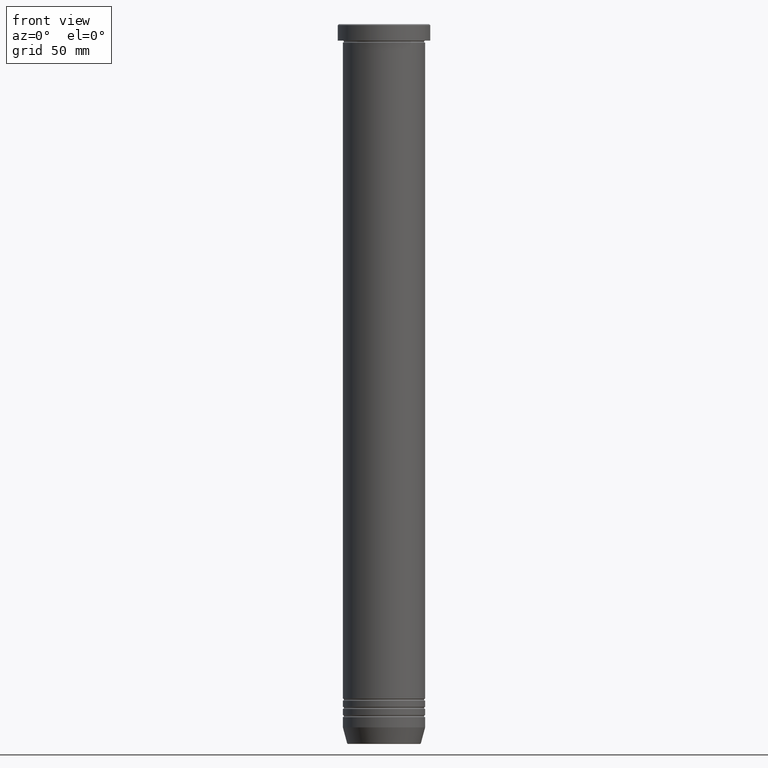
[diagram: clean part render]
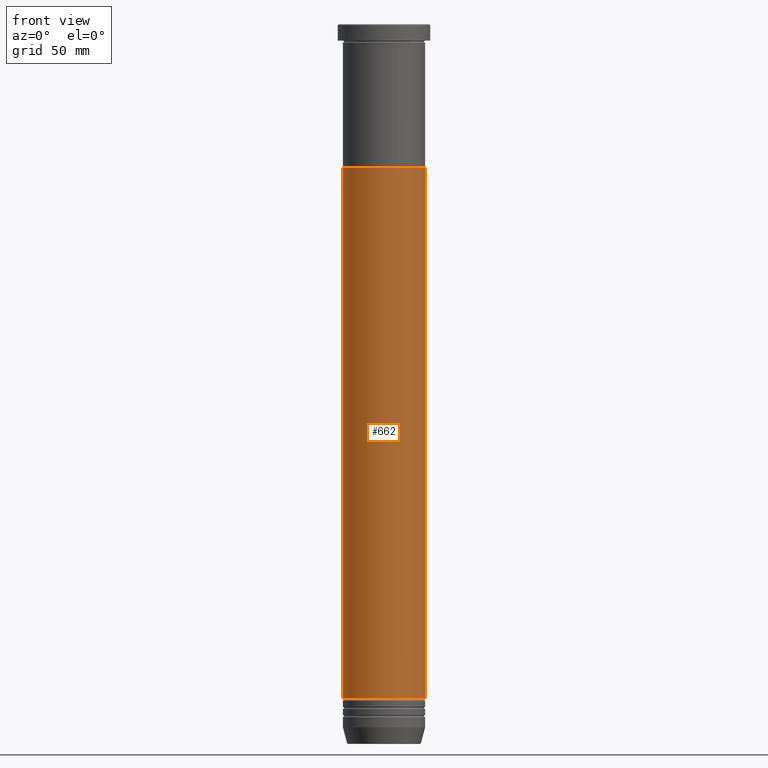
[diagram: same view with one face highlighted and labeled with its STEP entity id]
A machine part, front view. The second image highlights one B-rep face of the part: STEP entity #662.
In plain terms, the highlighted cylindrical surface (partial cylindrical patch) has radius 20 mm, axis along (-0, -0, 1).
Its self-contained STEP definition (entity closure, byte-faithful):
#7 = VERTEX_POINT ( 'NONE', #811 ) ;
#11 = CARTESIAN_POINT ( 'NONE',  ( 0.000000000000000000, 0.000000000000000000, -70.00000000000000000 ) ) ;
#42 = AXIS2_PLACEMENT_3D ( 'NONE', #974, #877, #548 ) ;
#49 = CYLINDRICAL_SURFACE ( 'NONE', #306, 19.99999999999999645 ) ;
#77 = DIRECTION ( 'NONE',  ( 1.000000000000000000, 0.000000000000000000, 0.000000000000000000 ) ) ;
#94 = DIRECTION ( 'NONE',  ( -0.000000000000000000, -0.000000000000000000, 1.000000000000000000 ) ) ;
#151 = EDGE_CURVE ( 'NONE', #678, #7, #1037, .T. ) ;
#213 = EDGE_CURVE ( 'NONE', #770, #7, #684, .T. ) ;
#228 = CARTESIAN_POINT ( 'NONE',  ( 19.99999999999999289, 0.000000000000000000, -328.0000000000000568 ) ) ;
#259 = CARTESIAN_POINT ( 'NONE',  ( -20.00000000000000000, 2.449293598294706513E-15, -70.00000000000000000 ) ) ;
#306 = AXIS2_PLACEMENT_3D ( 'NONE', #318, #383, #619 ) ;
#318 = CARTESIAN_POINT ( 'NONE',  ( 0.000000000000000000, 0.000000000000000000, 0.000000000000000000 ) ) ;
#383 = DIRECTION ( 'NONE',  ( -0.000000000000000000, -0.000000000000000000, 1.000000000000000000 ) ) ;
#385 = DIRECTION ( 'NONE',  ( -0.000000000000000000, -0.000000000000000000, 1.000000000000000000 ) ) ;
#447 = VECTOR ( 'NONE', #94, 1000.000000000000000 ) ;
#460 = ORIENTED_EDGE ( 'NONE', *, *, #558, .T. ) ;
#479 = DIRECTION ( 'NONE',  ( -0.000000000000000000, -0.000000000000000000, 1.000000000000000000 ) ) ;
#491 = EDGE_LOOP ( 'NONE', ( #1060, #460, #875, #1002 ) ) ;
#522 = EDGE_CURVE ( 'NONE', #931, #770, #806, .T. ) ;
#548 = DIRECTION ( 'NONE',  ( 1.000000000000000000, 0.000000000000000000, 0.000000000000000000 ) ) ;
#554 = CARTESIAN_POINT ( 'NONE',  ( -19.99999999999999645, 2.449293598294706119E-15, 0.000000000000000000 ) ) ;
#558 = EDGE_CURVE ( 'NONE', #931, #678, #818, .T. ) ;
#619 = DIRECTION ( 'NONE',  ( 1.000000000000000000, 0.000000000000000000, 0.000000000000000000 ) ) ;
#662 = ADVANCED_FACE ( 'NONE', ( #675 ), #49, .T. ) ;
#675 = FACE_OUTER_BOUND ( 'NONE', #491, .T. ) ;
#678 = VERTEX_POINT ( 'NONE', #228 ) ;
#684 = CIRCLE ( 'NONE', #688, 20.00000000000000000 ) ;
#688 = AXIS2_PLACEMENT_3D ( 'NONE', #11, #479, #77 ) ;
#689 = CARTESIAN_POINT ( 'NONE',  ( 19.99999999999999645, 0.000000000000000000, 0.000000000000000000 ) ) ;
#769 = CARTESIAN_POINT ( 'NONE',  ( -19.99999999999999289, 2.449293598294705724E-15, -328.0000000000000568 ) ) ;
#770 = VERTEX_POINT ( 'NONE', #259 ) ;
#806 = LINE ( 'NONE', #554, #447 ) ;
#811 = CARTESIAN_POINT ( 'NONE',  ( 20.00000000000000000, 0.000000000000000000, -70.00000000000000000 ) ) ;
#818 = CIRCLE ( 'NONE', #42, 19.99999999999999289 ) ;
#875 = ORIENTED_EDGE ( 'NONE', *, *, #151, .T. ) ;
#877 = DIRECTION ( 'NONE',  ( -0.000000000000000000, -0.000000000000000000, 1.000000000000000000 ) ) ;
#931 = VERTEX_POINT ( 'NONE', #769 ) ;
#974 = CARTESIAN_POINT ( 'NONE',  ( 0.000000000000000000, 0.000000000000000000, -328.0000000000000568 ) ) ;
#994 = VECTOR ( 'NONE', #385, 1000.000000000000000 ) ;
#1002 = ORIENTED_EDGE ( 'NONE', *, *, #213, .F. ) ;
#1037 = LINE ( 'NONE', #689, #994 ) ;
#1060 = ORIENTED_EDGE ( 'NONE', *, *, #522, .F. ) ;